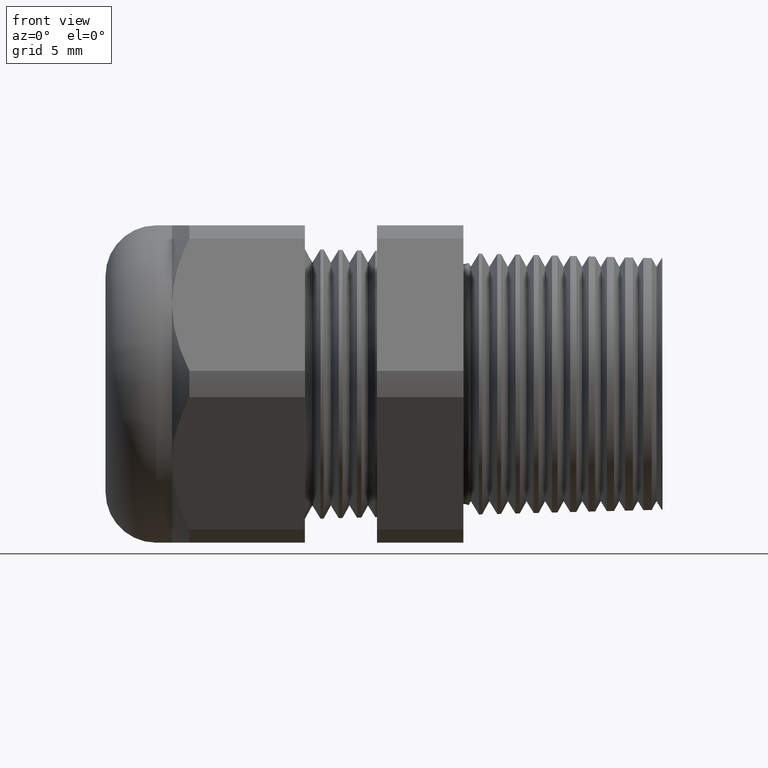
[diagram: clean part render]
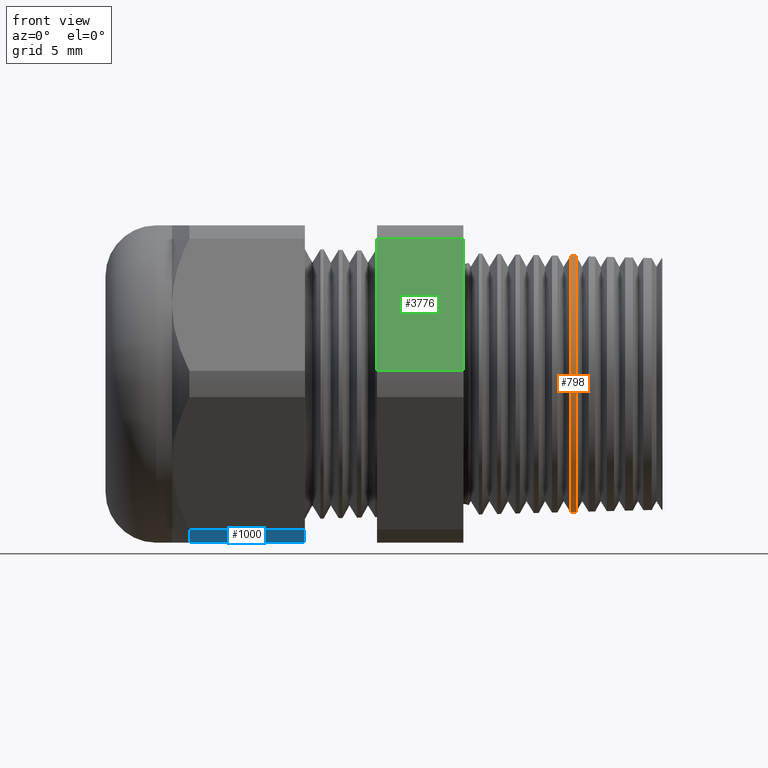
[diagram: same view with three faces highlighted in distinct colors, each labeled with its STEP entity id]
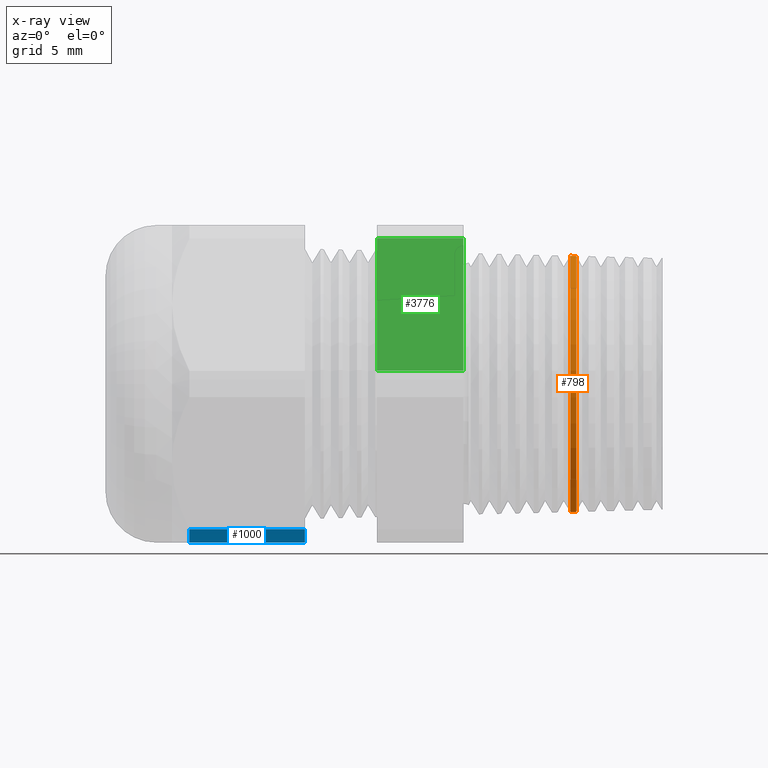
[diagram: x-ray of the same camera — body ghosted, the three highlighted faces saturated]
A machine part, front view with three faces highlighted in distinct colors.
The next image is the same camera in x-ray (body ghosted, the three faces saturated) — at least one of them is partly hidden behind the body in this view.
Their STEP definitions:

[orange] entity #798 — the highlighted conical surface has half-angle 1.5 deg.
#548 = VERTEX_POINT ( 'NONE', #2042 ) ;
#551 = VERTEX_POINT ( 'NONE', #2036 ) ;
#572 = VERTEX_POINT ( 'NONE', #2062 ) ;
#575 = VERTEX_POINT ( 'NONE', #2056 ) ;
#722 = EDGE_LOOP ( 'NONE', ( #723, #724, #726, #727 ) ) ;
#723 = ORIENTED_EDGE ( 'NONE', *, *, #949, .F. ) ;
#724 = ORIENTED_EDGE ( 'NONE', *, *, #725, .F. ) ;
#725 = EDGE_CURVE ( 'NONE', #551, #548, #2397, .T. ) ;
#726 = ORIENTED_EDGE ( 'NONE', *, *, #952, .T. ) ;
#727 = ORIENTED_EDGE ( 'NONE', *, *, #728, .F. ) ;
#728 = EDGE_CURVE ( 'NONE', #575, #572, #2392, .T. ) ;
#798 = ADVANCED_FACE ( 'NONE', ( #2503 ), #2502, .T. ) ;
#949 = EDGE_CURVE ( 'NONE', #548, #575, #2744, .T. ) ;
#952 = EDGE_CURVE ( 'NONE', #551, #572, #2802, .T. ) ;
#2036 = CARTESIAN_POINT ( 'NONE',  ( 0.02475954267465478600, 0.0000000000000000000, 0.3789410629185894200 ) ) ;
#2042 = CARTESIAN_POINT ( 'NONE',  ( 0.02475954267465478600, 4.643564621279130800E-017, -0.3789410629185894200 ) ) ;
#2056 = CARTESIAN_POINT ( 'NONE',  ( 0.006829030549056694900, 4.646439644870798400E-017, -0.3794105899028055200 ) ) ;
#2062 = CARTESIAN_POINT ( 'NONE',  ( 0.006829030549056694900, 0.0000000000000000000, 0.3794105899028055200 ) ) ;
#2389 = DIRECTION ( 'NONE',  ( 0.0000000000000000000, 0.0000000000000000000, -1.000000000000000000 ) ) ;
#2390 = DIRECTION ( 'NONE',  ( -1.000000000000000000, 0.0000000000000000000, 0.0000000000000000000 ) ) ;
#2391 = AXIS2_PLACEMENT_3D ( 'NONE', #2398, #2390, #2389 ) ;
#2392 = CIRCLE ( 'NONE', #2391, 0.3794105899028055200 ) ;
#2393 = DIRECTION ( 'NONE',  ( 0.0000000000000000000, 0.0000000000000000000, 1.000000000000000000 ) ) ;
#2394 = DIRECTION ( 'NONE',  ( 1.000000000000000000, 0.0000000000000000000, 0.0000000000000000000 ) ) ;
#2395 = CARTESIAN_POINT ( 'NONE',  ( 0.02475954267465478600, 0.0000000000000000000, 0.0000000000000000000 ) ) ;
#2396 = AXIS2_PLACEMENT_3D ( 'NONE', #2395, #2394, #2393 ) ;
#2397 = CIRCLE ( 'NONE', #2396, 0.3789410629185894200 ) ;
#2398 = CARTESIAN_POINT ( 'NONE',  ( 0.006829030549056694900, 0.0000000000000000000, 0.0000000000000000000 ) ) ;
#2498 = DIRECTION ( 'NONE',  ( 0.0000000000000000000, 0.0000000000000000000, 1.000000000000000000 ) ) ;
#2499 = DIRECTION ( 'NONE',  ( -1.000000000000000000, 0.0000000000000000000, 0.0000000000000000000 ) ) ;
#2500 = AXIS2_PLACEMENT_3D ( 'NONE', #2508, #2499, #2498 ) ;
#2502 = CONICAL_SURFACE ( 'NONE', #2500, 0.3722573563217862500, 0.02617993877990804100 ) ;
#2503 = FACE_OUTER_BOUND ( 'NONE', #722, .T. ) ;
#2508 = CARTESIAN_POINT ( 'NONE',  ( 0.2800000000000000800, 0.0000000000000000000, 0.0000000000000000000 ) ) ;
#2744 = LINE ( 'NONE', #2805, #2804 ) ;
#2799 = DIRECTION ( 'NONE',  ( -0.9996573249755573700, 0.0000000000000000000, 0.02617694830786624800 ) ) ;
#2800 = VECTOR ( 'NONE', #2799, 39.37007874015748100 ) ;
#2801 = CARTESIAN_POINT ( 'NONE',  ( 0.2800000000000000800, 0.0000000000000000000, 0.3722573563217862500 ) ) ;
#2802 = LINE ( 'NONE', #2801, #2800 ) ;
#2803 = DIRECTION ( 'NONE',  ( -0.9996573249755573700, 3.205751595667412300E-018, -0.02617694830786624800 ) ) ;
#2804 = VECTOR ( 'NONE', #2803, 39.37007874015748100 ) ;
#2805 = CARTESIAN_POINT ( 'NONE',  ( 0.2800000000000000800, 4.558837798785312400E-017, -0.3722573563217862500 ) ) ;

[blue] entity #1000 — the highlighted cylindrical surface (partial cylindrical patch) has radius 13.2512 mm, axis along (-1, 0, 0).
#1000 = ADVANCED_FACE ( 'NONE', ( #2839 ), #2838, .T. ) ;
#1001 = EDGE_LOOP ( 'NONE', ( #1002, #1060, #1062, #1063 ) ) ;
#1002 = ORIENTED_EDGE ( 'NONE', *, *, #1003, .T. ) ;
#1003 = EDGE_CURVE ( 'NONE', #1058, #1059, #2897, .T. ) ;
#1058 = VERTEX_POINT ( 'NONE', #3010 ) ;
#1059 = VERTEX_POINT ( 'NONE', #3009 ) ;
#1060 = ORIENTED_EDGE ( 'NONE', *, *, #1061, .T. ) ;
#1061 = EDGE_CURVE ( 'NONE', #1059, #1074, #3008, .T. ) ;
#1062 = ORIENTED_EDGE ( 'NONE', *, *, #1072, .F. ) ;
#1063 = ORIENTED_EDGE ( 'NONE', *, *, #1064, .F. ) ;
#1064 = EDGE_CURVE ( 'NONE', #1058, #1073, #3003, .T. ) ;
#1072 = EDGE_CURVE ( 'NONE', #1073, #1074, #3045, .T. ) ;
#1073 = VERTEX_POINT ( 'NONE', #3041 ) ;
#1074 = VERTEX_POINT ( 'NONE', #3040 ) ;
#2838 = CYLINDRICAL_SURFACE ( 'NONE', #2901, 0.5217000000000000500 ) ;
#2839 = FACE_OUTER_BOUND ( 'NONE', #1001, .T. ) ;
#2894 = DIRECTION ( 'NONE',  ( -1.000000000000000000, 0.0000000000000000000, 0.0000000000000000000 ) ) ;
#2895 = VECTOR ( 'NONE', #2894, 39.37007874015748100 ) ;
#2896 = CARTESIAN_POINT ( 'NONE',  ( 0.2800000000000000300, -0.2938165587564944800, -0.4310947921287051100 ) ) ;
#2897 = LINE ( 'NONE', #2896, #2895 ) ;
#2898 = DIRECTION ( 'NONE',  ( 0.0000000000000000000, 0.0000000000000000000, 1.000000000000000000 ) ) ;
#2899 = DIRECTION ( 'NONE',  ( -1.000000000000000000, 0.0000000000000000000, 0.0000000000000000000 ) ) ;
#2900 = CARTESIAN_POINT ( 'NONE',  ( 0.2800000000000000300, 0.0000000000000000000, 0.0000000000000000000 ) ) ;
#2901 = AXIS2_PLACEMENT_3D ( 'NONE', #2900, #2899, #2898 ) ;
#2999 = DIRECTION ( 'NONE',  ( 0.0000000000000000000, 0.0000000000000000000, -1.000000000000000000 ) ) ;
#3000 = DIRECTION ( 'NONE',  ( 1.000000000000000000, 0.0000000000000000000, 0.0000000000000000000 ) ) ;
#3001 = CARTESIAN_POINT ( 'NONE',  ( -0.7794488188976376200, 0.0000000000000000000, 0.0000000000000000000 ) ) ;
#3002 = AXIS2_PLACEMENT_3D ( 'NONE', #3001, #3000, #2999 ) ;
#3003 = CIRCLE ( 'NONE', #3002, 0.5217000000000000500 ) ;
#3004 = DIRECTION ( 'NONE',  ( 0.0000000000000000000, 0.0000000000000000000, -1.000000000000000000 ) ) ;
#3005 = DIRECTION ( 'NONE',  ( 1.000000000000000000, 0.0000000000000000000, 0.0000000000000000000 ) ) ;
#3006 = CARTESIAN_POINT ( 'NONE',  ( -1.121449606299212300, 0.0000000000000000000, 0.0000000000000000000 ) ) ;
#3007 = AXIS2_PLACEMENT_3D ( 'NONE', #3006, #3005, #3004 ) ;
#3008 = CIRCLE ( 'NONE', #3007, 0.5217000000000000500 ) ;
#3009 = CARTESIAN_POINT ( 'NONE',  ( -1.121449606299212300, -0.2938165587564944800, -0.4310947921287051100 ) ) ;
#3010 = CARTESIAN_POINT ( 'NONE',  ( -0.7794488188976376200, -0.2938165587564944800, -0.4310947921287051100 ) ) ;
#3040 = CARTESIAN_POINT ( 'NONE',  ( -1.121449606299212300, -0.2264307620443831200, -0.4700000000000000300 ) ) ;
#3041 = CARTESIAN_POINT ( 'NONE',  ( -0.7794488188976376200, -0.2264307620443831200, -0.4700000000000000300 ) ) ;
#3042 = DIRECTION ( 'NONE',  ( -1.000000000000000000, 0.0000000000000000000, 0.0000000000000000000 ) ) ;
#3043 = VECTOR ( 'NONE', #3042, 39.37007874015748100 ) ;
#3044 = CARTESIAN_POINT ( 'NONE',  ( 0.2800000000000000300, -0.2264307620443831200, -0.4700000000000000300 ) ) ;
#3045 = LINE ( 'NONE', #3044, #3043 ) ;

[green] entity #3776 — the highlighted planar face has unit normal (0, -0.866, 0.5).
#962 = EDGE_CURVE ( 'NONE', #990, #963, #2787, .T. ) ;
#963 = VERTEX_POINT ( 'NONE', #2783 ) ;
#990 = VERTEX_POINT ( 'NONE', #2861 ) ;
#2783 = CARTESIAN_POINT ( 'NONE',  ( -0.3100000000000000000, -0.5202473208008777700, 0.03890520787129464500 ) ) ;
#2784 = DIRECTION ( 'NONE',  ( 0.0000000000000000000, -0.4999999999999996100, -0.8660254037844388200 ) ) ;
#2785 = VECTOR ( 'NONE', #2784, 39.37007874015748900 ) ;
#2786 = CARTESIAN_POINT ( 'NONE',  ( -0.3100000000000000000, -0.1720319397786865500, 0.6420319397786857800 ) ) ;
#2787 = LINE ( 'NONE', #2786, #2785 ) ;
#2861 = CARTESIAN_POINT ( 'NONE',  ( -0.3100000000000000000, -0.2938165587564948700, 0.4310947921287048800 ) ) ;
#3117 = DIRECTION ( 'NONE',  ( -1.000000000000000000, 0.0000000000000000000, 0.0000000000000000000 ) ) ;
#3118 = VECTOR ( 'NONE', #3117, 39.37007874015748100 ) ;
#3119 = CARTESIAN_POINT ( 'NONE',  ( 0.2800000000000000300, -0.5202473208008777700, 0.03890520787129464500 ) ) ;
#3120 = LINE ( 'NONE', #3119, #3118 ) ;
#3163 = DIRECTION ( 'NONE',  ( -1.000000000000000000, 0.0000000000000000000, 0.0000000000000000000 ) ) ;
#3164 = VECTOR ( 'NONE', #3163, 39.37007874015748100 ) ;
#3165 = CARTESIAN_POINT ( 'NONE',  ( 0.2800000000000000300, -0.2938165587564948700, 0.4310947921287048800 ) ) ;
#3166 = LINE ( 'NONE', #3165, #3164 ) ;
#3167 = DIRECTION ( 'NONE',  ( 0.0000000000000000000, -0.4999999999999996100, -0.8660254037844388200 ) ) ;
#3168 = DIRECTION ( 'NONE',  ( 0.0000000000000000000, -0.8660254037844388200, 0.4999999999999996100 ) ) ;
#3169 = CARTESIAN_POINT ( 'NONE',  ( 0.2800000000000000300, -0.5202473208008777700, 0.03890520787129483900 ) ) ;
#3170 = AXIS2_PLACEMENT_3D ( 'NONE', #3169, #3168, #3167 ) ;
#3171 = PLANE ( 'NONE',  #3170 ) ;
#3176 = FACE_OUTER_BOUND ( 'NONE', #3765, .T. ) ;
#3465 = CARTESIAN_POINT ( 'NONE',  ( -0.5659055118110235500, -0.5202473208008777700, 0.03890520787129464500 ) ) ;
#3471 = CARTESIAN_POINT ( 'NONE',  ( -0.5659055118110235500, -0.2938165587564948700, 0.4310947921287048800 ) ) ;
#3472 = DIRECTION ( 'NONE',  ( 0.0000000000000000000, 0.4999999999999996100, 0.8660254037844388200 ) ) ;
#3473 = VECTOR ( 'NONE', #3472, 39.37007874015748900 ) ;
#3474 = CARTESIAN_POINT ( 'NONE',  ( -0.5659055118110234400, -0.1720319397786865500, 0.6420319397786857800 ) ) ;
#3475 = LINE ( 'NONE', #3474, #3473 ) ;
#3765 = EDGE_LOOP ( 'NONE', ( #3767, #3774, #3773, #3768 ) ) ;
#3766 = EDGE_CURVE ( 'NONE', #963, #3967, #3120, .T. ) ;
#3767 = ORIENTED_EDGE ( 'NONE', *, *, #3778, .T. ) ;
#3768 = ORIENTED_EDGE ( 'NONE', *, *, #962, .F. ) ;
#3773 = ORIENTED_EDGE ( 'NONE', *, *, #3766, .F. ) ;
#3774 = ORIENTED_EDGE ( 'NONE', *, *, #3963, .F. ) ;
#3776 = ADVANCED_FACE ( 'NONE', ( #3176 ), #3171, .T. ) ;
#3778 = EDGE_CURVE ( 'NONE', #990, #3965, #3166, .T. ) ;
#3963 = EDGE_CURVE ( 'NONE', #3967, #3965, #3475, .T. ) ;
#3965 = VERTEX_POINT ( 'NONE', #3471 ) ;
#3967 = VERTEX_POINT ( 'NONE', #3465 ) ;